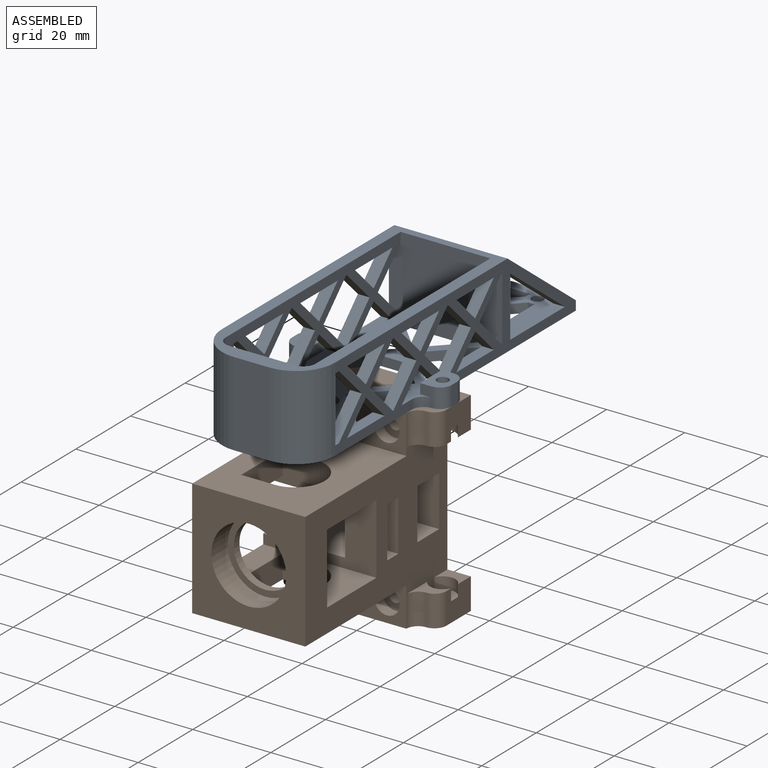
[diagram: assembled view]
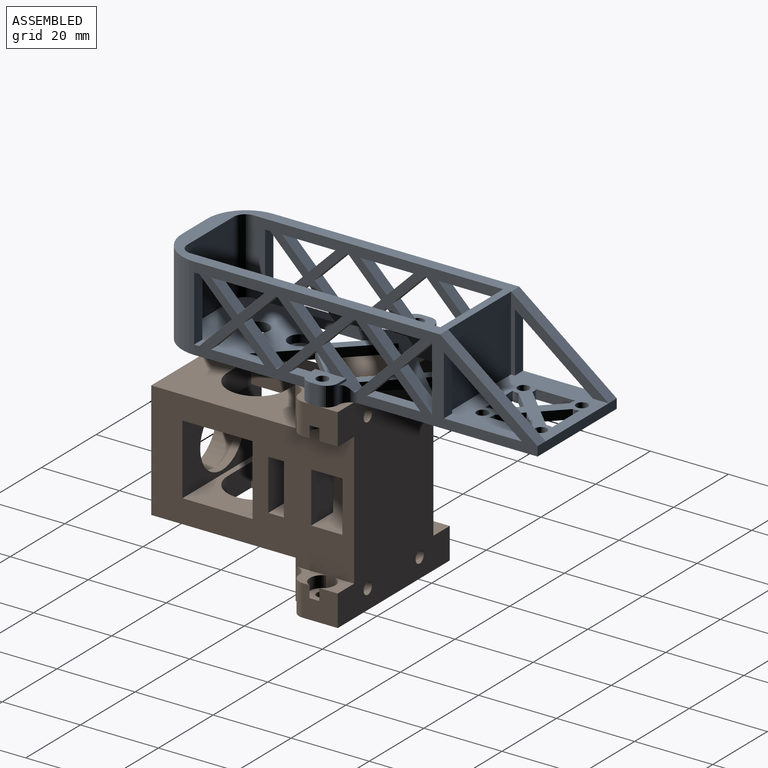
[diagram: assembled view, second angle]
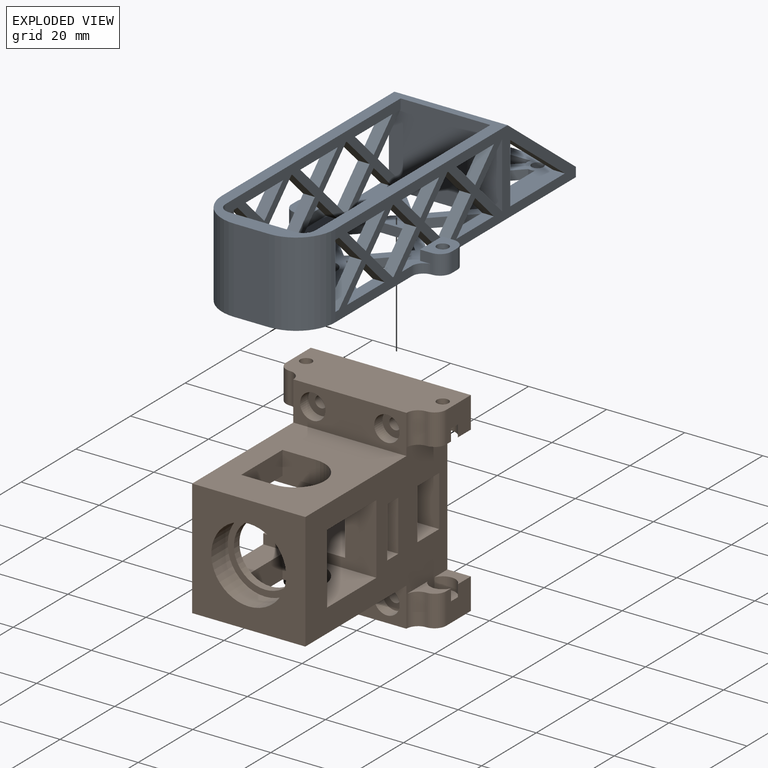
[diagram: exploded view]
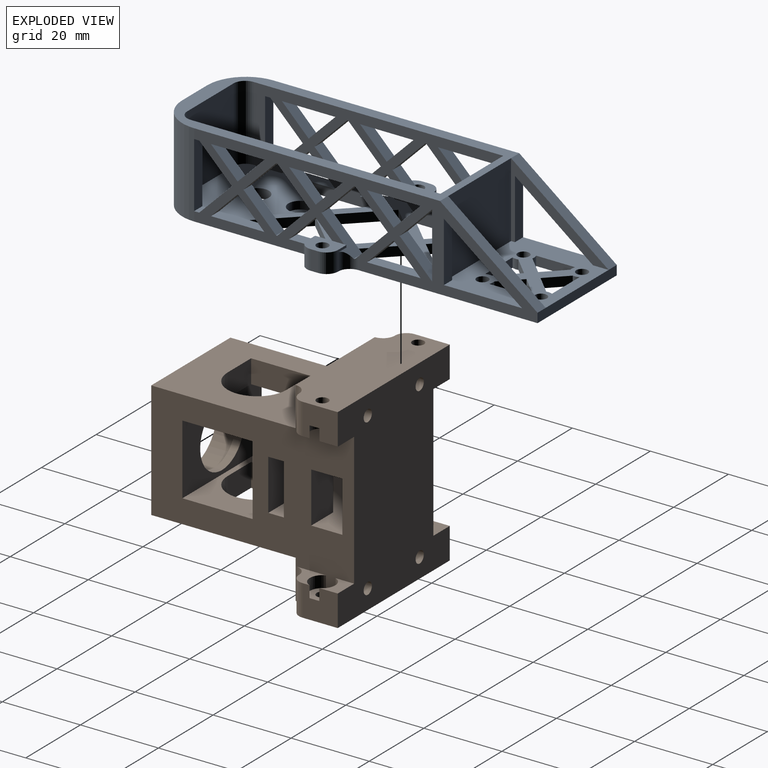
[diagram: exploded view, second angle]
ASSEMBLY  parts=2 mates=2
PART A: 161 faces, bbox 41x98x21.6 mm
  f0: plane 88x21.6mm, normal (-1,0,0), area 734mm2, adj f1,f2,f6,f8,f10,f14,f16,f31
  f1: plane 98x41mm, normal (0,0,-1), area 1924.3mm2, adj f0,f4,f6,f7,f9,f10,f11,f12
  f2: plane 29x25mm, normal (0,0,1), area 511.1mm2, adj f0,f3,f4,f5,f6,f24,f110,f111
  f3: plane 25x19.2mm, normal (-1,0,0), area 86.4mm2, adj f2,f24,f112,f113,f114
  f4: plane 25x21.6mm, normal (1,0,0), area 146.4mm2, adj f1,f2,f6,f7,f112,f113,f114
  f5: plane 25x19.2mm, normal (1,0,0), area 86.4mm2, adj f2,f24,f109,f110,f111
  f6: plane 29x2.4mm, normal (0,1,0), area 69.6mm2, adj f0,f1,f2,f4,f109,f114
  f7: cylinder r=10mm len=21.6mm, axis (0,0,-1), area 0.5mm2, adj f1,f4,f8,f9
  f8: plane 73x29mm, normal (0,0,1), area 536.9mm2, adj f0,f7,f9,f10,f22,f23,f24,f26
  f9: plane 62.98x21.6mm, normal (1,0,0), area 587.1mm2, adj f1,f7,f8,f10,f14,f17,f32,f39
  f10: plane 29x21.6mm, normal (0,-1,0), area 597mm2, adj f0,f1,f8,f9,f11,f12,f22,f23
  f11: plane 11.79x11.5mm, normal (0.72,0.7,0), area 39.5mm2, adj f1,f10,f12,f14
  f12: plane 11.79x11.5mm, normal (-0.72,0.7,0), area 39.5mm2, adj f1,f10,f11,f14
  f13: plane 3.17x0.3mm, normal (0,0,1), area 0.9mm2, adj f23,f45,f46,f147
  f14: plane 67x35mm, normal (0,0,1), area 992.2mm2, adj f0,f9,f11,f12,f18,f19,f22,f23
  f15: plane 3.17x0.3mm, normal (0,0,1), area 0.9mm2, adj f22,f73,f74,f160
  f16: plane 3x0.3mm, normal (0,0,1), area 0.9mm2, adj f0,f22,f88,f89
  f17: plane 3x0.3mm, normal (0,0,1), area 0.9mm2, adj f9,f23,f64,f65
  f18: plane 2x1.5mm, normal (1,0,0), area 3mm2, adj f14,f20,f28,f100
  f19: plane 2x1.5mm, normal (-1,0,0), area 3mm2, adj f14,f21,f28,f99
  f20: plane 1.5x1.46mm, normal (0,0,1), area 1.1mm2, adj f18,f28,f100
  f21: plane 1.5x1.46mm, normal (0,0,1), area 1.1mm2, adj f19,f28,f99
  f22: plane 64x21.6mm, normal (1,0,0), area 593.2mm2, adj f1,f8,f10,f14,f15,f16,f33,f35
  f23: plane 64x21.6mm, normal (-1,0,0), area 593.2mm2, adj f1,f8,f10,f13,f14,f17,f34,f39
  f24: plane 23x19.2mm, normal (0,1,0), area 441.6mm2, adj f2,f3,f5,f8
  f25: cylinder r=3mm len=6mm, axis (0,0,1), area 45.2mm2, adj f1,f14
  f26: plane 21.6x9mm, normal (0,-1,0), area 194.4mm2, adj f1,f8,f31,f32
  f27: plane 19.2x17mm, normal (0,1,0), area 326.4mm2, adj f8,f14,f33,f34
  f28: plane 10x2.4mm, normal (0,-1,0), area 22.8mm2, adj f1,f14,f18,f19,f20,f21,f99,f100
  f29: cylinder r=3mm len=6mm, axis (0,0,1), area 37.7mm2, adj f14,f30
  f30: plane 6x6mm, normal (0,0,1), area 28.3mm2, adj f29
  f31: cylinder r=10mm len=21.6mm, axis (0,0,-1), area 339.3mm2, adj f0,f1,f8,f26,f35
  f32: cylinder r=10mm len=21.6mm, axis (0,0,1), area 339.3mm2, adj f1,f8,f9,f26,f59
  f33: cylinder r=3mm len=19.2mm, axis (0,0,1), area 90.5mm2, adj f8,f14,f22,f27
  f34: cylinder r=3mm len=19.2mm, axis (0,0,-1), area 90.5mm2, adj f8,f14,f23,f27
  f35: plane 16.7x3mm, normal (0,1,0), area 50.1mm2, adj f14,f22,f31,f36
  f36: plane 3x1.3mm, normal (0,0,-1), area 3.9mm2, adj f0,f22,f35,f37
  f37: plane 8.35x8.35mm, normal (0,-0.71,-0.71), area 35.4mm2, adj f0,f22,f36,f38
  f38: plane 8.35x8.35mm, normal (0,-0.71,0.71), area 35.4mm2, adj f0,f14,f22,f37
  f39: plane 6.85x6.85mm, normal (0,0.71,0.71), area 29.1mm2, adj f9,f23,f40,f41
  f40: plane 13.7x3mm, normal (0,0,-1), area 41.1mm2, adj f9,f23,f39,f41
  f41: plane 6.85x6.85mm, normal (0,-0.71,0.71), area 29.1mm2, adj f9,f23,f39,f40
  f42: plane 8.35x8.35mm, normal (0,0.71,-0.71), area 35.4mm2, adj f9,f23,f43,f46
  f43: plane 3x0.3mm, normal (0,0,-1), area 0.9mm2, adj f9,f23,f42,f44
  f44: plane 8.35x8.35mm, normal (0,-0.71,-0.71), area 35.4mm2, adj f9,f23,f43,f45
  f45: plane 8.36x8.36mm, normal (0,-0.71,0.71), area 35.5mm2, adj f9,f13,f23,f44,f147
  f46: plane 8.35x8.35mm, normal (0,0.71,0.71), area 38.1mm2, adj f9,f13,f23,f42,f139,f141,f147
  f47: plane 13.7x3mm, normal (0,0,-1), area 41.1mm2, adj f9,f23,f48,f49
  f48: plane 6.85x6.85mm, normal (0,-0.71,0.71), area 29.1mm2, adj f9,f23,f47,f49
  f49: plane 6.85x6.85mm, normal (0,0.71,0.71), area 29.1mm2, adj f9,f23,f47,f48
  f50: plane 13.7x3mm, normal (0,0,-1), area 41.1mm2, adj f9,f23,f51,f52
  f51: plane 6.85x6.85mm, normal (0,-0.71,0.71), area 29.1mm2, adj f9,f23,f50,f52
  f52: plane 6.85x6.85mm, normal (0,0.71,0.71), area 29.1mm2, adj f9,f23,f50,f51
  f53: plane 6.85x6.85mm, normal (0,0.71,-0.71), area 29.1mm2, adj f9,f14,f23,f54
  f54: plane 6.85x6.85mm, normal (0,-0.71,-0.71), area 29.1mm2, adj f9,f14,f23,f53
  f55: plane 6.85x6.85mm, normal (0,0.71,-0.71), area 29.1mm2, adj f9,f14,f23,f56
  f56: plane 6.85x6.85mm, normal (0,-0.71,-0.71), area 29.1mm2, adj f9,f14,f23,f55,f140
  f57: plane 8.35x8.35mm, normal (0,-0.71,0.71), area 35.4mm2, adj f9,f14,f23,f58
  f58: plane 8.35x8.35mm, normal (0,-0.71,-0.71), area 35.4mm2, adj f9,f23,f57,f60
  f59: plane 16.7x3mm, normal (0,1,0), area 50.1mm2, adj f14,f23,f32,f60
  f60: plane 3x1.3mm, normal (0,0,-1), area 3.9mm2, adj f9,f23,f58,f59
  f61: plane 8.35x8.35mm, normal (0,0.71,-0.71), area 35.4mm2, adj f9,f23,f62,f65
  f62: plane 3x0.3mm, normal (0,0,-1), area 0.9mm2, adj f9,f23,f61,f63
  f63: plane 8.35x8.35mm, normal (0,-0.71,-0.71), area 35.4mm2, adj f9,f23,f62,f64
  f64: plane 8.35x8.35mm, normal (0,-0.71,0.71), area 35.4mm2, adj f9,f17,f23,f63
  f65: plane 8.35x8.35mm, normal (0,0.71,0.71), area 35.4mm2, adj f9,f17,f23,f61
  f66: plane 8.35x8.35mm, normal (0,0.71,-0.71), area 35.4mm2, adj f9,f10,f23,f67
  f67: plane 8.35x8.35mm, normal (0,0.71,0.71), area 35.4mm2, adj f9,f10,f23,f66
  f68: plane 6.85x6.85mm, normal (0,-0.71,-0.71), area 29.1mm2, adj f9,f14,f23,f69
  f69: plane 6.85x6.85mm, normal (0,0.71,-0.71), area 29.1mm2, adj f9,f14,f23,f68
  f70: plane 6.85x6.85mm, normal (0,-0.71,0.71), area 29.1mm2, adj f0,f22,f71,f72
  f71: plane 13.7x3mm, normal (0,0,-1), area 41.1mm2, adj f0,f22,f70,f72
  f72: plane 6.85x6.85mm, normal (0,0.71,0.71), area 29.1mm2, adj f0,f22,f70,f71
  f73: plane 8.35x8.35mm, normal (0,0.71,0.71), area 38.1mm2, adj f0,f15,f22,f77,f150,f155,f160
  f74: plane 8.36x8.36mm, normal (0,-0.71,0.71), area 35.5mm2, adj f0,f15,f22,f75,f160
  f75: plane 8.35x8.35mm, normal (0,-0.71,-0.71), area 35.4mm2, adj f0,f22,f74,f76
  f76: plane 3x0.3mm, normal (0,0,-1), area 0.9mm2, adj f0,f22,f75,f77
  f77: plane 8.35x8.35mm, normal (0,0.71,-0.71), area 35.4mm2, adj f0,f22,f73,f76
  f78: plane 6.85x6.85mm, normal (0,0.71,0.71), area 29.1mm2, adj f0,f22,f79,f80
  f79: plane 6.85x6.85mm, normal (0,-0.71,0.71), area 29.1mm2, adj f0,f22,f78,f80
  f80: plane 13.7x3mm, normal (0,0,-1), area 41.1mm2, adj f0,f22,f78,f79
  f81: plane 6.85x6.85mm, normal (0,0.71,0.71), area 29.1mm2, adj f0,f22,f82,f83
  f82: plane 6.85x6.85mm, normal (0,-0.71,0.71), area 29.1mm2, adj f0,f22,f81,f83
  f83: plane 13.7x3mm, normal (0,0,-1), area 41.1mm2, adj f0,f22,f81,f82
  f84: plane 6.85x6.85mm, normal (0,0.71,-0.71), area 29.1mm2, adj f0,f14,f22,f85
  f85: plane 6.85x6.85mm, normal (0,-0.71,-0.71), area 29.1mm2, adj f0,f14,f22,f84
  f86: plane 6.85x6.85mm, normal (0,-0.71,-0.71), area 29.1mm2, adj f0,f14,f22,f87,f151
  f87: plane 6.85x6.85mm, normal (0,0.71,-0.71), area 29.1mm2, adj f0,f14,f22,f86
  f88: plane 8.35x8.35mm, normal (0,0.71,0.71), area 35.4mm2, adj f0,f16,f22,f92
  f89: plane 8.35x8.35mm, normal (0,-0.71,0.71), area 35.4mm2, adj f0,f16,f22,f90
  f90: plane 8.35x8.35mm, normal (0,-0.71,-0.71), area 35.4mm2, adj f0,f22,f89,f91
  f91: plane 3x0.3mm, normal (0,0,-1), area 0.9mm2, adj f0,f22,f90,f92
  f92: plane 8.35x8.35mm, normal (0,0.71,-0.71), area 35.4mm2, adj f0,f22,f88,f91
  f93: plane 8.35x8.35mm, normal (0,0.71,0.71), area 35.4mm2, adj f0,f10,f22,f94
  f94: plane 8.35x8.35mm, normal (0,0.71,-0.71), area 35.4mm2, adj f0,f10,f22,f93
  f95: plane 6.85x6.85mm, normal (0,0.71,-0.71), area 29.1mm2, adj f0,f14,f22,f96
  f96: plane 6.85x6.85mm, normal (0,-0.71,-0.71), area 29.1mm2, adj f0,f14,f22,f95
  f97: plane 10x9.75mm, normal (0.72,-0.7,0), area 33.5mm2, adj f1,f14,f23,f98
  f98: plane 10x9.75mm, normal (0.72,0.7,0), area 33.5mm2, adj f1,f14,f23,f97
  f99: plane 7.27x7.09mm, normal (-0.72,-0.7,0), area 20.2mm2, adj f1,f14,f19,f21,f28,f102
  f100: plane 7.27x7.09mm, normal (0.72,-0.7,0), area 20.2mm2, adj f1,f14,f18,f20,f28,f101
  f101: plane 10.9x10.63mm, normal (0.72,0.7,0), area 36.5mm2, adj f1,f14,f100,f102
  f102: plane 10.9x10.63mm, normal (-0.72,0.7,0), area 36.5mm2, adj f1,f14,f99,f101
  f103: plane 10x9.75mm, normal (-0.72,-0.7,0), area 33.5mm2, adj f1,f14,f22,f104
  f104: plane 10x9.75mm, normal (-0.72,0.7,0), area 33.5mm2, adj f1,f14,f22,f103
  f105: plane 10x9.75mm, normal (-0.72,-0.7,0), area 33.5mm2, adj f1,f14,f22,f106
  f106: plane 10x9.75mm, normal (-0.72,0.7,0), area 33.5mm2, adj f1,f14,f22,f105
  f107: plane 10x9.75mm, normal (0.72,-0.7,0), area 33.5mm2, adj f1,f14,f23,f108
  f108: plane 10x9.75mm, normal (0.72,0.7,0), area 33.5mm2, adj f1,f14,f23,f107
  f109: plane 25x19.2mm, normal (0,0.61,0.79), area 94.6mm2, adj f0,f5,f6,f8
  f110: plane 15.36x3mm, normal (0,1,0), area 46.1mm2, adj f0,f2,f5,f111
  f111: plane 20x15.36mm, normal (0,-0.61,-0.79), area 75.7mm2, adj f0,f2,f5,f110
  f112: plane 20x15.36mm, normal (0,-0.61,-0.79), area 75.7mm2, adj f2,f3,f4,f113
  f113: plane 15.36x3mm, normal (0,1,0), area 46.1mm2, adj f2,f3,f4,f112
  f114: plane 25x19.2mm, normal (0,0.61,0.79), area 94.6mm2, adj f3,f4,f6,f8
  f115: cylinder r=1.5mm len=3mm, axis (0,0,1), area 22.6mm2, adj f1,f2
  f116: cylinder r=1.5mm len=3mm, axis (0,0,1), area 22.6mm2, adj f1,f2
  f117: cylinder r=1.5mm len=3mm, axis (0,0,1), area 22.6mm2, adj f1,f2
  f118: cylinder r=1.5mm len=3mm, axis (0,0,1), area 22.6mm2, adj f1,f2
  f119: plane 4.84x4.84mm, normal (0.71,0.71,0), area 16.4mm2, adj f1,f2,f120,f123
  f120: plane 4.84x4.84mm, normal (-0.71,0.71,0), area 16.4mm2, adj f1,f2,f119,f121
  f121: cylinder r=2.71mm len=2.4mm, axis (0,0,1), area 3.9mm2, adj f1,f2,f120,f122
  f122: plane 10.01x2.4mm, normal (0,-1,0), area 24mm2, adj f1,f2,f121,f123
  f123: cylinder r=2.71mm len=2.4mm, axis (0,0,1), area 3.9mm2, adj f1,f2,f119,f122
  f124: cylinder r=2.71mm len=2.4mm, axis (0,0,1), area 3.9mm2, adj f1,f2,f125,f128
  f125: plane 4.84x4.84mm, normal (-0.71,0.71,0), area 16.4mm2, adj f1,f2,f124,f126
  f126: plane 4.84x4.84mm, normal (-0.71,-0.71,0), area 16.4mm2, adj f1,f2,f125,f127
  f127: cylinder r=2.71mm len=2.4mm, axis (0,0,1), area 3.9mm2, adj f1,f2,f126,f128
  f128: plane 10.01x2.4mm, normal (1,0,0), area 24mm2, adj f1,f2,f124,f127
  f129: cylinder r=2.71mm len=2.4mm, axis (0,0,1), area 3.9mm2, adj f1,f2,f130,f133
  f130: plane 10.01x2.4mm, normal (-1,0,0), area 24mm2, adj f1,f2,f129,f131
  f131: cylinder r=2.71mm len=2.4mm, axis (0,0,1), area 3.9mm2, adj f1,f2,f130,f132
  f132: plane 4.84x4.84mm, normal (0.71,-0.71,0), area 16.4mm2, adj f1,f2,f131,f133
  f133: plane 4.84x4.84mm, normal (0.71,0.71,0), area 16.4mm2, adj f1,f2,f129,f132
  f134: cylinder r=2.71mm len=2.4mm, axis (0,0,1), area 3.9mm2, adj f1,f2,f135,f138
  f135: plane 4.84x4.84mm, normal (-0.71,-0.71,0), area 16.4mm2, adj f1,f2,f134,f136
  f136: plane 4.84x4.84mm, normal (0.71,-0.71,0), area 16.4mm2, adj f1,f2,f135,f137
  f137: cylinder r=2.71mm len=2.4mm, axis (0,0,1), area 3.9mm2, adj f1,f2,f136,f138
  f138: plane 10.01x2.4mm, normal (0,1,0), area 24mm2, adj f1,f2,f134,f137
  f139: plane 0.6x0.6mm, normal (-1,0,0), area 0.2mm2, adj f46,f141,f145
  f140: plane 7x2.6mm, normal (-1,0,0), area 14.8mm2, adj f14,f56,f144,f145
  f141: plane 3x0.6mm, normal (0,1,0), area 1.8mm2, adj f46,f139,f145,f146
  f142: plane 5x2mm, normal (1,0,0), area 10mm2, adj f1,f145,f146,f148
  f143: cylinder r=1.5mm len=5mm, axis (0,0,-1), area 47.1mm2, adj f1,f145
  f144: plane 3x2.6mm, normal (0,-1,0), area 7.8mm2, adj f14,f140,f145,f148
  f145: plane 8x6mm, normal (0,0,1), area 37.1mm2, adj f9,f139,f140,f141,f142,f143,f144,f146
  f146: cylinder r=3mm len=5mm, axis (0,0,1), area 23.6mm2, adj f1,f141,f142,f145,f147
  f147: cylinder r=3mm len=4.4mm, axis (0,0,1), area 16.3mm2, adj f1,f9,f13,f45,f46,f146
  f148: cylinder r=3mm len=5mm, axis (0,0,-1), area 23.6mm2, adj f1,f142,f144,f145,f149
  f149: cylinder r=3mm len=3mm, axis (0,0,-1), area 11.3mm2, adj f1,f9,f14,f148
  f150: plane 0.6x0.6mm, normal (1,0,0), area 0.2mm2, adj f73,f155,f156
  f151: plane 7x2.6mm, normal (1,0,0), area 14.8mm2, adj f14,f86,f152,f156
  f152: plane 3x2.6mm, normal (0,-1,0), area 7.8mm2, adj f14,f151,f156,f158
  f153: plane 5x2mm, normal (-1,0,0), area 10mm2, adj f1,f156,f157,f158
  f154: cylinder r=1.5mm len=5mm, axis (0,0,-1), area 47.1mm2, adj f1,f156
  f155: plane 3x0.6mm, normal (0,1,0), area 1.8mm2, adj f73,f150,f156,f157
  f156: plane 8x6mm, normal (0,0,1), area 37.1mm2, adj f0,f150,f151,f152,f153,f154,f155,f157
  f157: cylinder r=3mm len=5mm, axis (0,0,1), area 23.6mm2, adj f1,f153,f155,f156,f160
  f158: cylinder r=3mm len=5mm, axis (0,0,-1), area 23.6mm2, adj f1,f152,f153,f156,f159
  f159: cylinder r=3mm len=3mm, axis (0,0,-1), area 11.3mm2, adj f0,f1,f14,f158
  f160: cylinder r=3mm len=4.4mm, axis (0,0,1), area 16.3mm2, adj f0,f1,f15,f73,f74,f157
PART B: 81 faces, bbox 50x41x52 mm
  f0: plane 7.75x6mm, normal (-1,0,0), area 19.8mm2, adj f1,f6,f71,f72,f78
  f1: plane 9x8mm, normal (0,1,0), area 64.5mm2, adj f0,f14,f23,f69,f72,f78,f79,f80
  f2: cylinder r=1.5mm len=5mm, axis (-1,0,0), area 47.1mm2, adj f14,f80
  f3: plane 9x8mm, normal (0,1,0), area 64.5mm2, adj f4,f5,f13,f23,f74,f75,f76,f77
  f4: plane 6x4.75mm, normal (1,0,0), area 19.8mm2, adj f3,f6,f23,f75
  f5: plane 7.75x6mm, normal (1,0,0), area 19.8mm2, adj f3,f6,f73,f74,f76
  f6: plane 52x40mm, normal (0,1,0), area 1155mm2, adj f0,f4,f5,f16,f17,f18,f19,f20
  f7: plane 9x8mm, normal (0,-1,0), area 64.5mm2, adj f8,f9,f14,f23,f60,f66,f67,f68
  f8: plane 6x4.75mm, normal (-1,0,0), area 19.8mm2, adj f7,f15,f23,f66
  f9: plane 7.75x6mm, normal (-1,0,0), area 19.8mm2, adj f7,f15,f59,f60,f67
  f10: cylinder r=1.5mm len=5mm, axis (-1,0,0), area 47.1mm2, adj f14,f68
  f11: plane 7.75x6mm, normal (1,0,0), area 19.8mm2, adj f12,f15,f61,f62,f63
  f12: plane 9x8mm, normal (0,-1,0), area 64.5mm2, adj f11,f13,f23,f57,f62,f63,f64,f65
  f13: plane 41x15mm, normal (-1,0,0), area 564.9mm2, adj f3,f12,f22,f23,f58,f61,f62,f70
  f14: plane 41x15mm, normal (1,0,0), area 564.9mm2, adj f1,f2,f7,f10,f23,f24,f59,f60
  f15: plane 52x40mm, normal (0,-1,0), area 1012mm2, adj f8,f9,f11,f16,f17,f18,f19,f20
  f16: plane 29x23mm, normal (-1,0,0), area 579mm2, adj f6,f15,f18,f38,f40,f41,f42,f43
  f17: plane 29x18mm, normal (-1,0,0), area 303.4mm2, adj f6,f15,f26,f30,f32,f33,f34,f38
  f18: plane 29x13mm, normal (0,0,1), area 377mm2, adj f6,f15,f16,f39
  f19: plane 29x18mm, normal (1,0,0), area 303.4mm2, adj f6,f15,f26,f31,f35,f36,f37,f38
  f20: plane 37x29mm, normal (-1,0,0), area 854.4mm2, adj f6,f15,f22,f25,f31,f35,f36,f37
  f21: plane 37x29mm, normal (1,0,0), area 854.4mm2, adj f6,f15,f24,f25,f30,f32,f33,f34
  f22: plane 29x10mm, normal (0,0,1), area 223.6mm2, adj f6,f13,f15,f20,f49,f51,f61,f73
  f23: plane 50x41mm, normal (0,0,-1), area 1613.7mm2, adj f1,f3,f4,f6,f7,f8,f12,f13
  f24: plane 29x10mm, normal (0,0,1), area 223.6mm2, adj f6,f14,f15,f21,f45,f47,f59,f71
  f25: plane 30x29mm, normal (0,0,1), area 580.5mm2, adj f6,f15,f20,f21,f27
  f26: plane 29x18mm, normal (0,0,-1), area 320.9mm2, adj f6,f15,f17,f19,f29
  f27: cylinder r=9.6mm len=19.2mm, axis (0,0,1), area 361.9mm2, adj f25,f28
  f28: plane 19.2x19.2mm, normal (0,0,1), area 88.5mm2, adj f27,f29
  f29: cylinder r=8mm len=16mm, axis (0,0,1), area 100.5mm2, adj f26,f28
  f30: cylinder r=7.55mm len=15.1mm, axis (-1,0,0), area 142.3mm2, adj f17,f21,f33,f34
  f31: cylinder r=7.55mm len=15.1mm, axis (-1,0,0), area 142.3mm2, adj f19,f20,f36,f37
  f32: plane 15.1x6mm, normal (0,1,0), area 90.6mm2, adj f17,f21,f33,f34
  f33: plane 8.55x6mm, normal (0,0,-1), area 51.3mm2, adj f17,f21,f30,f32
  f34: plane 8.55x6mm, normal (0,0,1), area 51.3mm2, adj f17,f21,f30,f32
  f35: plane 15.1x6mm, normal (0,1,0), area 90.6mm2, adj f19,f20,f36,f37
  f36: plane 8.55x6mm, normal (0,0,1), area 51.3mm2, adj f19,f20,f31,f35
  f37: plane 8.55x6mm, normal (0,0,-1), area 51.3mm2, adj f19,f20,f31,f35
  f38: plane 29x18mm, normal (0,0,1), area 249mm2, adj f6,f15,f16,f17,f19,f39,f44
  f39: plane 29x23mm, normal (1,0,0), area 579mm2, adj f6,f15,f18,f38,f40,f41,f42,f43
  f40: plane 13x8mm, normal (0,0,-1), area 104mm2, adj f6,f16,f39,f42
  f41: plane 13x8mm, normal (0,0,1), area 104mm2, adj f6,f16,f39,f42
  f42: plane 13x7mm, normal (0,-1,0), area 91mm2, adj f16,f39,f40,f41
  f43: plane 13x8mm, normal (0,0,-1), area 104mm2, adj f6,f16,f39,f44
  f44: plane 13x4mm, normal (0,-1,0), area 52mm2, adj f16,f38,f39,f43
  f45: cylinder r=3.25mm len=6.5mm, axis (0,0,1), area 61.3mm2, adj f24,f46
  f46: plane 6.5x6.5mm, normal (0,0,1), area 26.1mm2, adj f45,f54
  f47: cylinder r=3.25mm len=6.5mm, axis (0,0,1), area 61.3mm2, adj f24,f48
  f48: plane 6.5x6.5mm, normal (0,0,1), area 26.1mm2, adj f47,f55
  f49: cylinder r=3.25mm len=6.5mm, axis (0,0,1), area 61.3mm2, adj f22,f50
  f50: plane 6.5x6.5mm, normal (0,0,1), area 26.1mm2, adj f49,f53
  f51: cylinder r=3.25mm len=6.5mm, axis (0,0,1), area 61.3mm2, adj f22,f52
  f52: plane 6.5x6.5mm, normal (0,0,1), area 26.1mm2, adj f51,f56
  f53: cylinder r=1.5mm len=12mm, axis (0,0,1), area 113.1mm2, adj f23,f50
  f54: cylinder r=1.5mm len=12mm, axis (0,0,1), area 113.1mm2, adj f23,f46
  f55: cylinder r=1.5mm len=12mm, axis (0,0,1), area 113.1mm2, adj f23,f48
  f56: cylinder r=1.5mm len=12mm, axis (0,0,1), area 113.1mm2, adj f23,f52
  f57: plane 6x4.75mm, normal (1,0,0), area 19.8mm2, adj f12,f15,f23,f64
  f58: cylinder r=1.5mm len=5mm, axis (-1,0,0), area 47.1mm2, adj f13,f65
  f59: cylinder r=3mm len=8mm, axis (-1,0,0), area 37.7mm2, adj f9,f14,f24,f60
  f60: cylinder r=3mm len=8mm, axis (1,0,0), area 37.7mm2, adj f7,f9,f14,f59
  f61: cylinder r=3mm len=8mm, axis (-1,0,0), area 37.7mm2, adj f11,f13,f22,f62
  f62: cylinder r=3mm len=8mm, axis (1,0,0), area 37.7mm2, adj f11,f12,f13,f61
  f63: cylinder r=3.25mm len=6mm, axis (1,0,0), area 22.9mm2, adj f11,f12,f15,f65
  f64: cylinder r=3.25mm len=6mm, axis (1,0,0), area 22.9mm2, adj f12,f15,f57,f65
  f65: plane 6.5x6mm, normal (1,0,0), area 25.3mm2, adj f12,f15,f58,f63,f64
  f66: cylinder r=3.25mm len=6mm, axis (-1,0,0), area 22.9mm2, adj f7,f8,f15,f68
  f67: cylinder r=3.25mm len=6mm, axis (-1,0,0), area 22.9mm2, adj f7,f9,f15,f68
  f68: plane 6.5x6mm, normal (-1,0,0), area 25.3mm2, adj f7,f10,f15,f66,f67
  f69: plane 6x4.75mm, normal (-1,0,0), area 19.8mm2, adj f1,f6,f23,f79
  f70: cylinder r=1.5mm len=5mm, axis (-1,0,0), area 47.1mm2, adj f13,f77
  f71: cylinder r=3mm len=8mm, axis (-1,0,0), area 37.7mm2, adj f0,f14,f24,f72
  f72: cylinder r=3mm len=8mm, axis (-1,0,0), area 37.7mm2, adj f0,f1,f14,f71
  f73: cylinder r=3mm len=8mm, axis (-1,0,0), area 37.7mm2, adj f5,f13,f22,f74
  f74: cylinder r=3mm len=8mm, axis (-1,0,0), area 37.7mm2, adj f3,f5,f13,f73
  f75: cylinder r=3.25mm len=6mm, axis (1,0,0), area 22.9mm2, adj f3,f4,f6,f77
  f76: cylinder r=3.25mm len=6mm, axis (1,0,0), area 22.9mm2, adj f3,f5,f6,f77
  f77: plane 6.5x6mm, normal (1,0,0), area 25.3mm2, adj f3,f6,f70,f75,f76
  f78: cylinder r=3.25mm len=6mm, axis (-1,0,0), area 22.9mm2, adj f0,f1,f6,f80
  f79: cylinder r=3.25mm len=6mm, axis (-1,0,0), area 22.9mm2, adj f1,f6,f69,f80
  f80: plane 6.5x6mm, normal (-1,0,0), area 25.3mm2, adj f1,f2,f6,f78,f79
PLACE A t=(-56.15,11.98,-102.15)mm
PLACE B rot(axis=(0.58,0.58,-0.58),120deg) t=(-56.15,-48.02,-122.75)mm
MATE planar B.f13 <-> A.f116  axis (0,0,1) through (-56.15,-20.18,-97.75)mm
MATE slider A.f25 <-> B.f30  axis (0,0,-1) through (-56.15,-48.02,-97.75)mm
